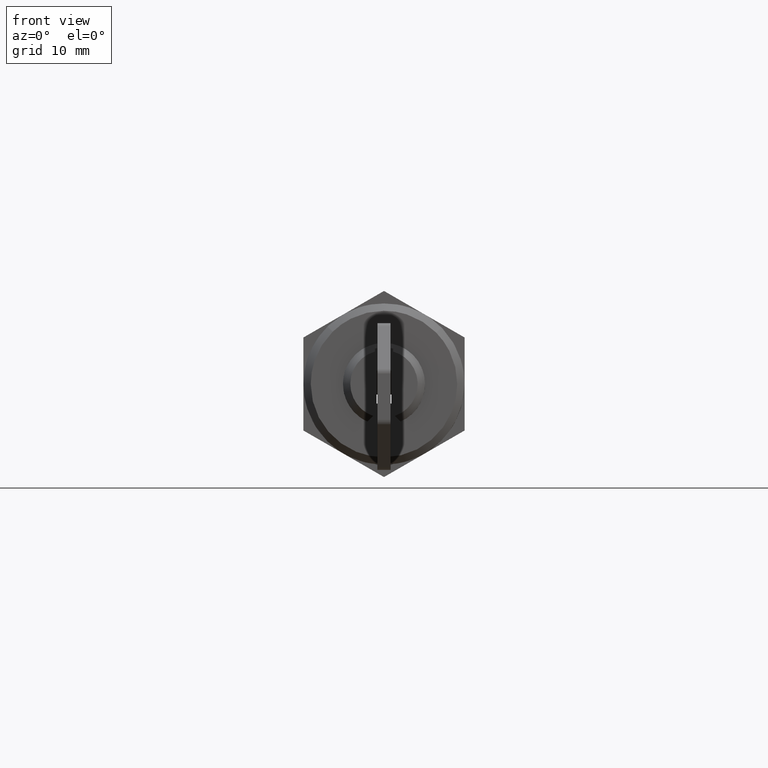
[diagram: clean part render]
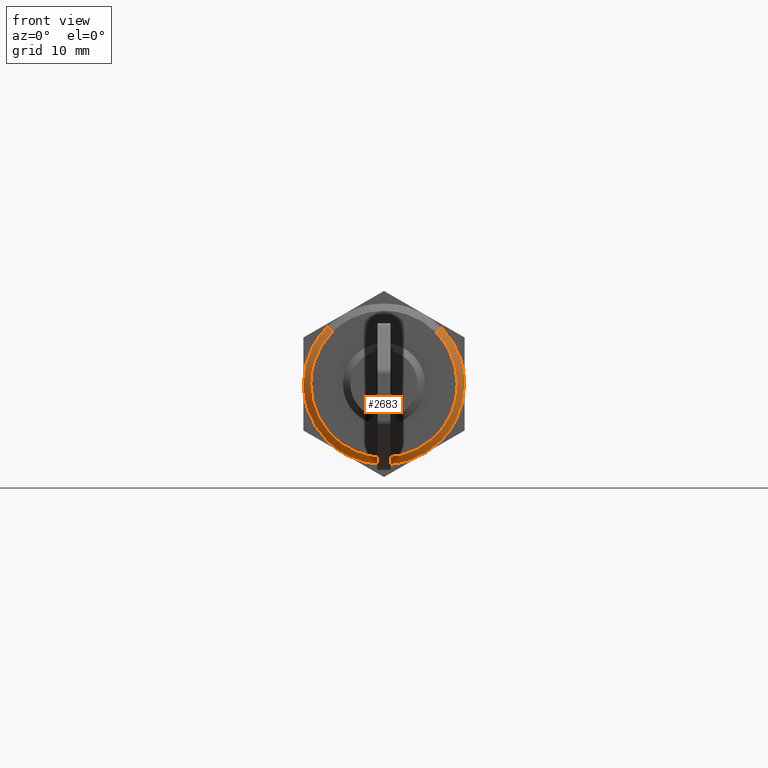
[diagram: same view with one face highlighted and labeled with its STEP entity id]
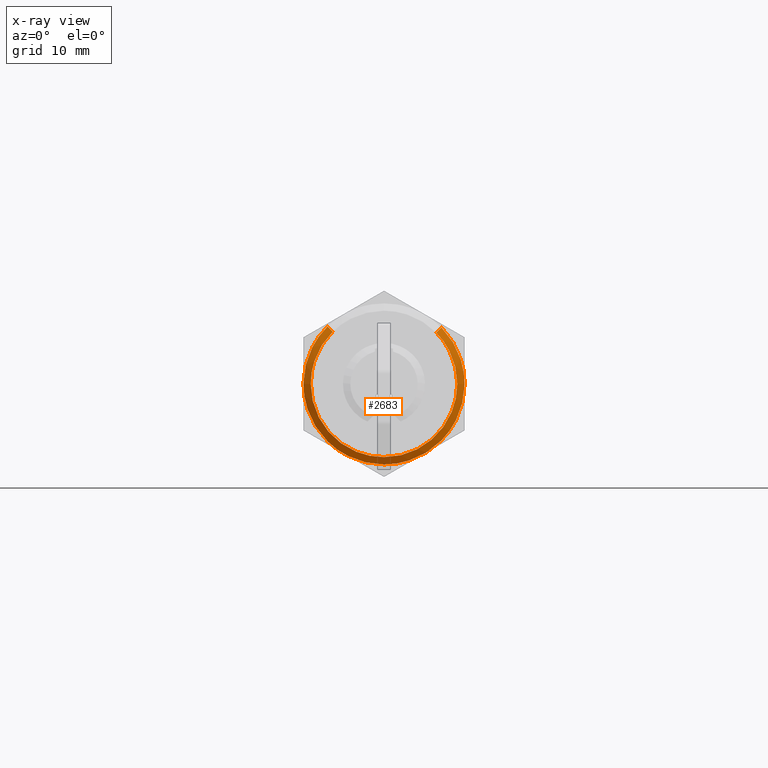
[diagram: x-ray of the same camera — body ghosted, the highlighted face saturated]
A machine part, front view. The second image highlights one B-rep face of the part: STEP entity #2683.
The next image is the same camera in x-ray: the body ghosted, the highlighted face saturated — about 4% of this face is hidden behind the body in this view.
In plain terms, the highlighted face is a freeform B-spline surface patch.
Its self-contained STEP definition (entity closure, byte-faithful):
#2515=CARTESIAN_POINT('',(-0.025000000000000,-7.114673230312957,6.991569911391009));
#2516=CARTESIAN_POINT('',(-0.025000000000000,-14.106243141703967,-0.123103318921948));
#2517=CARTESIAN_POINT('',(-0.025000000000000,-6.991569911391009,-7.114673230312957));
#2518=CARTESIAN_POINT('',(-0.025000000000000,0.123103318921948,-14.106243141703967));
#2519=CARTESIAN_POINT('',(-0.025000000000000,7.114673230312957,-6.991569911391009));
#2520=CARTESIAN_POINT('',(-0.025000000000000,14.106243141703967,0.123103318921948));
#2521=CARTESIAN_POINT('',(-0.025000000000000,6.991569911391009,7.114673230312957));
#2522=CARTESIAN_POINT('',(1.025625000000000,-7.864031983455570,7.727962707196041));
#2523=CARTESIAN_POINT('',(1.025625000000000,-15.591994690651610,-0.136069276259529));
#2524=CARTESIAN_POINT('',(1.025625000000000,-7.727962707196041,-7.864031983455570));
#2525=CARTESIAN_POINT('',(1.025625000000000,0.136069276259529,-15.591994690651610));
#2526=CARTESIAN_POINT('',(1.025625000000000,7.864031983455570,-7.727962707196041));
#2527=CARTESIAN_POINT('',(1.025625000000000,15.591994690651610,0.136069276259529));
#2528=CARTESIAN_POINT('',(1.025625000000000,7.727962707196041,7.864031983455570));
#2536=(BOUNDED_SURFACE()B_SPLINE_SURFACE(2,1,((#2515,#2522),(#2516,#2523),(#2517,#2524),(#2518,#2525),(#2519,#2526),(#2520,#2527),(#2521,#2528)),.UNSPECIFIED.,.F.,.F.,.U.)B_SPLINE_SURFACE_WITH_KNOTS((3,2,2,3),(2,2),(0.0,18.267853634559419,36.535707269118831,54.803560903678253),(0.0,1.0),.UNSPECIFIED.)GEOMETRIC_REPRESENTATION_ITEM()RATIONAL_B_SPLINE_SURFACE(((1.0,1.0),(0.707106781186548,0.707106781186548),(1.0,1.0),(0.707106781186548,0.707106781186548),(1.0,1.0),(0.707106781186548,0.707106781186548),(1.0,1.0)))REPRESENTATION_ITEM('')SURFACE());
#2537=CARTESIAN_POINT('',(0.0,-9.999999999999972,0.000000728911771));
#2538=VERTEX_POINT('',#2537);
#2539=CARTESIAN_POINT('',(0.000000091100094,-7.132504686473579,7.009092834556981));
#2540=VERTEX_POINT('',#2539);
#2541=CARTESIAN_POINT('',(0.0,-9.999999999999972,0.000000728911771));
#2542=CARTESIAN_POINT('',(8.938178E-009,-10.000113125736140,0.687689529241392));
#2543=CARTESIAN_POINT('',(0.000000025236344,-9.870106974468243,1.941643762504793));
#2544=CARTESIAN_POINT('',(0.000000046970392,-9.368832110863860,3.613825873133695));
#2545=CARTESIAN_POINT('',(0.000000069291731,-8.541408819201278,5.331193116387054));
#2546=CARTESIAN_POINT('',(0.000000083226734,-7.728089377943063,6.403329438498963));
#2547=CARTESIAN_POINT('',(0.000000091100094,-7.132504686473579,7.009092834556981));
#2548=B_SPLINE_CURVE_WITH_KNOTS('',3,(#2541,#2542,#2543,#2544,#2545,#2546,#2547),.UNSPECIFIED.,.F.,.U.,(4,1,1,1,4),(0.000000022620855,2.063047831808136,3.762037689953238,5.218287013659966,7.766762204491829),.UNSPECIFIED.);
#2549=EDGE_CURVE('',#2538,#2540,#2548,.T.);
#2550=ORIENTED_EDGE('',*,*,#2549,.F.);
#2551=CARTESIAN_POINT('',(0.0,0.0,-10.0));
#2552=VERTEX_POINT('',#2551);
#2553=CARTESIAN_POINT('',(0.0,0.0,-10.0));
#2554=CARTESIAN_POINT('',(0.0,-0.940881438497433,-10.000375292121721));
#2555=CARTESIAN_POINT('',(0.0,-2.576901271145982,-9.767291270686284));
#2556=CARTESIAN_POINT('',(0.0,-4.748311702903194,-8.883442751848305));
#2557=CARTESIAN_POINT('',(0.0,-6.314880069803830,-7.822668057609890));
#2558=CARTESIAN_POINT('',(0.0,-7.430394467238421,-6.734073733421277));
#2559=CARTESIAN_POINT('',(0.0,-8.319509887626548,-5.609114824939443));
#2560=CARTESIAN_POINT('',(0.0,-9.167259763847858,-4.154782723689828));
#2561=CARTESIAN_POINT('',(0.0,-9.836676657943233,-2.208896680583013));
#2562=CARTESIAN_POINT('',(0.0,-10.000107865776579,-0.736309310600644));
#2563=CARTESIAN_POINT('',(0.0,-9.999999999999972,0.000000728911771));
#2564=B_SPLINE_CURVE_WITH_KNOTS('',3,(#2553,#2554,#2555,#2556,#2557,#2558,#2559,#2560,#2561,#2562,#2563),.UNSPECIFIED.,.F.,.U.,(4,1,1,1,1,1,1,1,4),(0.000000080989267,2.822528699626924,4.908782388359734,6.995001817865315,8.467590966690803,9.572094093274831,11.290163542844891,13.499135834983470,15.708062239582270),.UNSPECIFIED.);
#2565=EDGE_CURVE('',#2552,#2538,#2564,.T.);
#2566=ORIENTED_EDGE('',*,*,#2565,.F.);
#2567=CARTESIAN_POINT('',(0.0,9.999999999999973,-0.000000728911742));
#2568=VERTEX_POINT('',#2567);
#2569=CARTESIAN_POINT('',(0.0,9.999999999999973,-0.000000728911742));
#2570=CARTESIAN_POINT('',(0.0,10.000039682680070,-0.531780693434171));
#2571=CARTESIAN_POINT('',(0.0,9.918224792401890,-1.554422195371626));
#2572=CARTESIAN_POINT('',(0.0,9.539185180182143,-3.150730661139485));
#2573=CARTESIAN_POINT('',(0.0,8.901055804384191,-4.664960453192995));
#2574=CARTESIAN_POINT('',(0.0,7.881414366481975,-6.253595653261356));
#2575=CARTESIAN_POINT('',(0.0,6.689528833766270,-7.505458810490898));
#2576=CARTESIAN_POINT('',(0.0,5.068584223603008,-8.692350423406065));
#2577=CARTESIAN_POINT('',(0.0,3.392037892420607,-9.485343107791021));
#2578=CARTESIAN_POINT('',(0.0,1.554414825430081,-9.921542731287332));
#2579=CARTESIAN_POINT('',(0.0,0.490864671906842,-10.000016578925850));
#2580=CARTESIAN_POINT('',(0.0,0.0,-10.0));
#2581=B_SPLINE_CURVE_WITH_KNOTS('',3,(#2569,#2570,#2571,#2572,#2573,#2574,#2575,#2576,#2577,#2578,#2579,#2580),.UNSPECIFIED.,.F.,.U.,(4,1,1,1,1,1,1,1,1,4),(0.000000081241115,1.595345495991698,3.067978493270152,4.908782131778169,6.504152909674746,8.713063034112338,10.062957034380791,12.517361636397331,14.235455654379519,15.708061417923700),.UNSPECIFIED.);
#2582=EDGE_CURVE('',#2568,#2552,#2581,.T.);
#2583=ORIENTED_EDGE('',*,*,#2582,.F.);
#2584=CARTESIAN_POINT('',(-0.000000091100091,7.009092451439592,7.132504296610486));
#2585=VERTEX_POINT('',#2584);
#2586=CARTESIAN_POINT('',(-0.000000091100091,7.009092451439592,7.132504296610486));
#2587=CARTESIAN_POINT('',(-0.000000085546267,7.451613463962628,6.697678417652432));
#2588=CARTESIAN_POINT('',(-0.000000071356309,8.389527689957260,5.586703084850798));
#2589=CARTESIAN_POINT('',(-0.000000049209177,9.300929544499443,3.852736305454440));
#2590=CARTESIAN_POINT('',(-0.000000024300331,9.872935055268357,1.902546498465263));
#2591=CARTESIAN_POINT('',(-8.980866E-009,10.000101100426770,0.703138741183112));
#2592=CARTESIAN_POINT('',(0.0,9.999999999999973,-0.000000728911742));
#2593=B_SPLINE_CURVE_WITH_KNOTS('',3,(#2586,#2587,#2588,#2589,#2590,#2591,#2592),.UNSPECIFIED.,.F.,.U.,(4,1,1,1,4),(0.000000025246541,1.861240410784375,4.342876627804643,5.831890227290372,7.941299658258615),.UNSPECIFIED.);
#2594=EDGE_CURVE('',#2585,#2568,#2593,.T.);
#2595=ORIENTED_EDGE('',*,*,#2594,.F.);
#2596=CARTESIAN_POINT('',(1.000000176075587,7.710002277537184,7.845755317454170));
#2597=VERTEX_POINT('',#2596);
#2598=CARTESIAN_POINT('',(-0.000000091100091,7.009092451439592,7.132504296610486));
#2599=CARTESIAN_POINT('',(1.000000176075587,7.710002277537184,7.845755317454170));
#2600=QUASI_UNIFORM_CURVE('',1,(#2598,#2599),.UNSPECIFIED.,.F.,.U.);
#2601=EDGE_CURVE('',#2585,#2597,#2600,.T.);
#2602=ORIENTED_EDGE('',*,*,#2601,.T.);
#2603=CARTESIAN_POINT('',(1.0,10.999999999999909,0.000001408819301));
#2604=VERTEX_POINT('',#2603);
#2605=CARTESIAN_POINT('',(1.0,10.999999999999909,0.000001408819301));
#2606=CARTESIAN_POINT('',(1.000000013273533,11.000030320967319,0.591456859911582));
#2607=CARTESIAN_POINT('',(1.000000042884078,10.893386283369709,1.910873620354968));
#2608=CARTESIAN_POINT('',(1.000000083532912,10.410451845290231,3.722145409177645));
#2609=CARTESIAN_POINT('',(1.000000130904571,9.431430404030941,5.832979688803541));
#2610=CARTESIAN_POINT('',(1.000000159621460,8.456724115621082,7.112575762767766));
#2611=CARTESIAN_POINT('',(1.000000176075587,7.710002277537184,7.845755317454170));
#2612=B_SPLINE_CURVE_WITH_KNOTS('',3,(#2605,#2606,#2607,#2608,#2609,#2610,#2611),.UNSPECIFIED.,.F.,.U.,(4,1,1,1,4),(0.000000017046107,1.774380320887614,3.958257193996267,5.596127153302585,8.735427742529536),.UNSPECIFIED.);
#2613=EDGE_CURVE('',#2604,#2597,#2612,.T.);
#2614=ORIENTED_EDGE('',*,*,#2613,.F.);
#2615=CARTESIAN_POINT('',(0.999999999970682,7.710001606761370,-7.845754742305607));
#2616=VERTEX_POINT('',#2615);
#2617=CARTESIAN_POINT('',(0.999999999970682,7.710001606761370,-7.845754742305607));
#2618=CARTESIAN_POINT('',(0.999999999972230,8.131884195535967,-7.431222715875967));
#2619=CARTESIAN_POINT('',(0.999999999975715,8.938431627988770,-6.499372912352925));
#2620=CARTESIAN_POINT('',(0.999999999981402,9.863246093010726,-4.977229165879536));
#2621=CARTESIAN_POINT('',(0.999999999987407,10.513765578109121,-3.370221351805957));
#2622=CARTESIAN_POINT('',(0.999999999993543,10.908042350418439,-1.728866532831272));
#2623=CARTESIAN_POINT('',(0.999999999997787,11.000041992269949,-0.591457795721679));
#2624=CARTESIAN_POINT('',(1.0,10.999999999999909,0.000001408819301));
#2625=B_SPLINE_CURVE_WITH_KNOTS('',3,(#2617,#2618,#2619,#2620,#2621,#2622,#2623,#2624),.UNSPECIFIED.,.F.,.U.,(4,1,1,1,1,4),(0.000000017042812,1.774380837518104,3.685277162850916,5.323139628011482,6.961049465478350,8.735430285960781),.UNSPECIFIED.);
#2626=EDGE_CURVE('',#2616,#2604,#2625,.T.);
#2627=ORIENTED_EDGE('',*,*,#2626,.F.);
#2628=CARTESIAN_POINT('',(1.0,0.0,-11.0));
#2629=VERTEX_POINT('',#2628);
#2630=CARTESIAN_POINT('',(1.0,0.0,-11.0));
#2631=CARTESIAN_POINT('',(0.999999999995941,1.067978528088547,-11.000425767666551));
#2632=CARTESIAN_POINT('',(0.999999999989677,2.714086369909595,-10.758332585050580));
#2633=CARTESIAN_POINT('',(0.999999999982245,4.669835940608229,-9.999221524765336));
#2634=CARTESIAN_POINT('',(0.999999999976322,6.226352024937139,-9.129238449780905));
#2635=CARTESIAN_POINT('',(0.999999999972733,7.170546588942391,-8.376054773028967));
#2636=CARTESIAN_POINT('',(0.999999999970682,7.710001606761370,-7.845754742305607));
#2637=B_SPLINE_CURVE_WITH_KNOTS('',3,(#2630,#2631,#2632,#2633,#2634,#2635,#2636),.UNSPECIFIED.,.F.,.U.,(4,1,1,1,4),(0.000000019907176,3.203790437332307,4.939158914376234,6.274087424324909,8.543438897953157),.UNSPECIFIED.);
#2638=EDGE_CURVE('',#2629,#2616,#2637,.T.);
#2639=ORIENTED_EDGE('',*,*,#2638,.F.);
#2640=CARTESIAN_POINT('',(1.000000000029105,-7.845755243369034,-7.710002101716599));
#2641=VERTEX_POINT('',#2640);
#2642=CARTESIAN_POINT('',(1.000000000029105,-7.845755243369034,-7.710002101716599));
#2643=CARTESIAN_POINT('',(1.000000000027804,-7.494983873774177,-8.066964975488199));
#2644=CARTESIAN_POINT('',(1.000000000024641,-6.642311375833280,-8.823753573901865));
#2645=CARTESIAN_POINT('',(1.000000000018798,-5.066739230227868,-9.835426938390842));
#2646=CARTESIAN_POINT('',(1.000000000010464,-2.820598097774894,-10.744827034047409));
#2647=CARTESIAN_POINT('',(1.000000000003881,-1.046472600390392,-11.000412448353080));
#2648=CARTESIAN_POINT('',(1.0,0.0,-11.0));
#2649=B_SPLINE_CURVE_WITH_KNOTS('',3,(#2642,#2643,#2644,#2645,#2646,#2647,#2648),.UNSPECIFIED.,.F.,.U.,(4,1,1,1,4),(0.000000017033699,1.501401266357648,3.412290233176098,5.596128058141796,8.735429154941112),.UNSPECIFIED.);
#2650=EDGE_CURVE('',#2641,#2629,#2649,.T.);
#2651=ORIENTED_EDGE('',*,*,#2650,.F.);
#2652=CARTESIAN_POINT('',(1.0,-10.999999999999909,-0.000001408819527));
#2653=VERTEX_POINT('',#2652);
#2654=CARTESIAN_POINT('',(1.0,-10.999999999999909,-0.000001408819527));
#2655=CARTESIAN_POINT('',(1.000000000002856,-11.000097277982890,-0.756452026983150));
#2656=CARTESIAN_POINT('',(1.000000000008736,-10.838763514342549,-2.313809413229512));
#2657=CARTESIAN_POINT('',(1.000000000016284,-10.185967562216289,-4.313798665955286));
#2658=CARTESIAN_POINT('',(1.000000000023240,-9.185035103068792,-6.156414352796371));
#2659=CARTESIAN_POINT('',(1.000000000027067,-8.376047946176115,-7.170544465549670));
#2660=CARTESIAN_POINT('',(1.000000000029105,-7.845755243369034,-7.710002101716599));
#2661=B_SPLINE_CURVE_WITH_KNOTS('',3,(#2654,#2655,#2656,#2657,#2658,#2659,#2660),.UNSPECIFIED.,.F.,.U.,(4,1,1,1,4),(0.000000019916648,2.269351192453209,4.672173140022105,6.274086591897742,8.543437764442246),.UNSPECIFIED.);
#2662=EDGE_CURVE('',#2653,#2641,#2661,.T.);
#2663=ORIENTED_EDGE('',*,*,#2662,.F.);
#2664=CARTESIAN_POINT('',(0.999999823924375,-7.845754563938137,7.710001537059047));
#2665=VERTEX_POINT('',#2664);
#2666=CARTESIAN_POINT('',(0.999999823924375,-7.845754563938137,7.710001537059047));
#2667=CARTESIAN_POINT('',(0.999999839864977,-8.532175698681296,7.011994026899155));
#2668=CARTESIAN_POINT('',(0.999999868586267,-9.474061236116963,5.754345725084439));
#2669=CARTESIAN_POINT('',(0.999999910266938,-10.312774581015420,3.929231586581873));
#2670=CARTESIAN_POINT('',(0.999999951224504,-10.850469749468360,2.135781073753775));
#2671=CARTESIAN_POINT('',(0.999999980691974,-11.000170266143209,0.845458775141115));
#2672=CARTESIAN_POINT('',(1.0,-10.999999999999909,-0.000001408819527));
#2673=B_SPLINE_CURVE_WITH_KNOTS('',3,(#2666,#2667,#2668,#2669,#2670,#2671,#2672),.UNSPECIFIED.,.F.,.U.,(4,1,1,1,4),(0.000000019917072,2.936814858616149,4.672174534142383,6.007102016630547,8.543440313727293),.UNSPECIFIED.);
#2674=EDGE_CURVE('',#2665,#2653,#2673,.T.);
#2675=ORIENTED_EDGE('',*,*,#2674,.F.);
#2676=CARTESIAN_POINT('',(0.000000091100094,-7.132504686473579,7.009092834556981));
#2677=CARTESIAN_POINT('',(0.999999823924375,-7.845754563938137,7.710001537059047));
#2678=QUASI_UNIFORM_CURVE('',1,(#2676,#2677),.UNSPECIFIED.,.F.,.U.);
#2679=EDGE_CURVE('',#2540,#2665,#2678,.T.);
#2680=ORIENTED_EDGE('',*,*,#2679,.F.);
#2681=EDGE_LOOP('',(#2550,#2566,#2583,#2595,#2602,#2614,#2627,#2639,#2651,#2663,#2675,#2680));
#2682=FACE_OUTER_BOUND('',#2681,.T.);
#2683=ADVANCED_FACE('',(#2682),#2536,.T.);